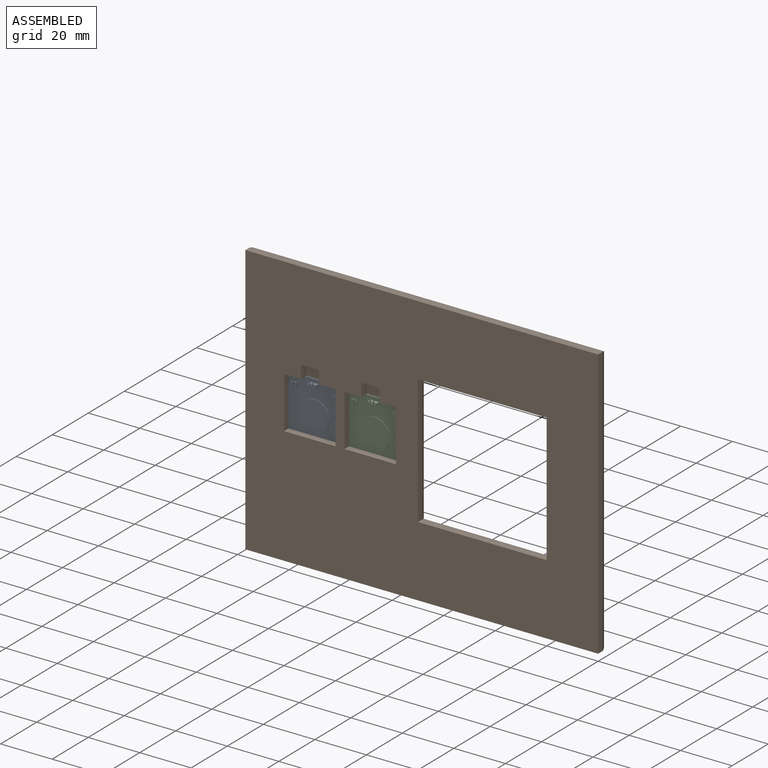
[diagram: assembled view]
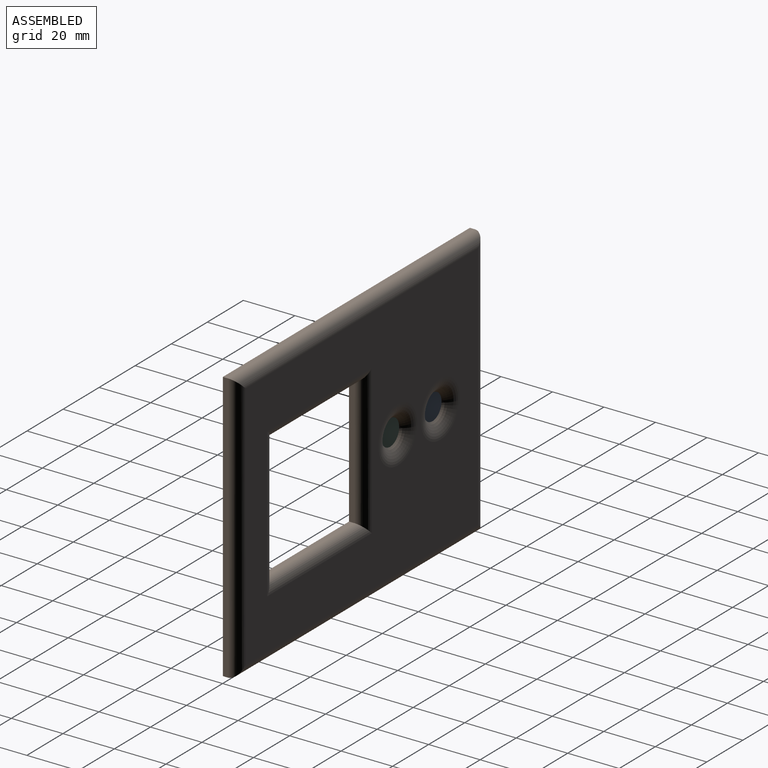
[diagram: assembled view, second angle]
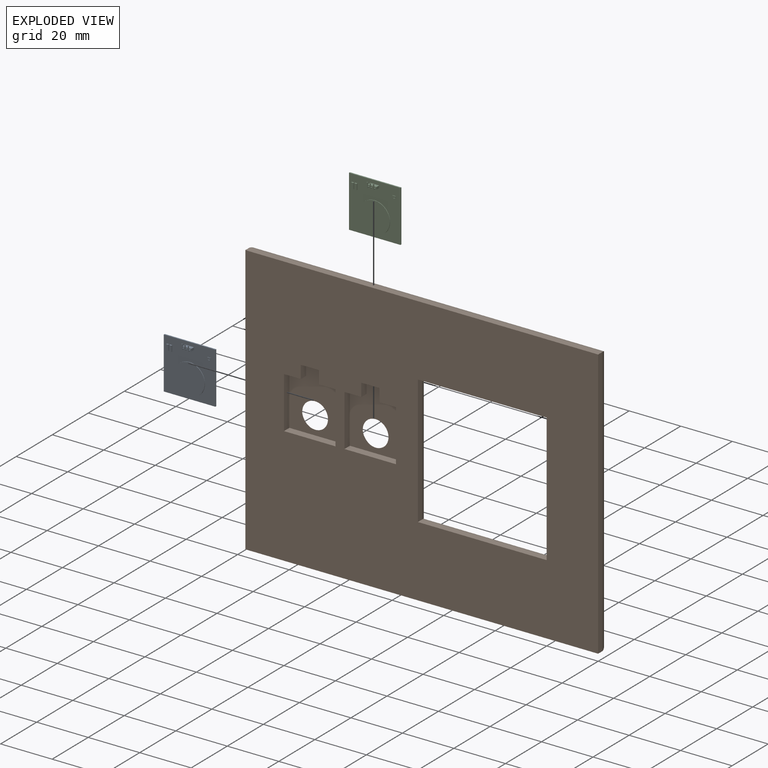
[diagram: exploded view]
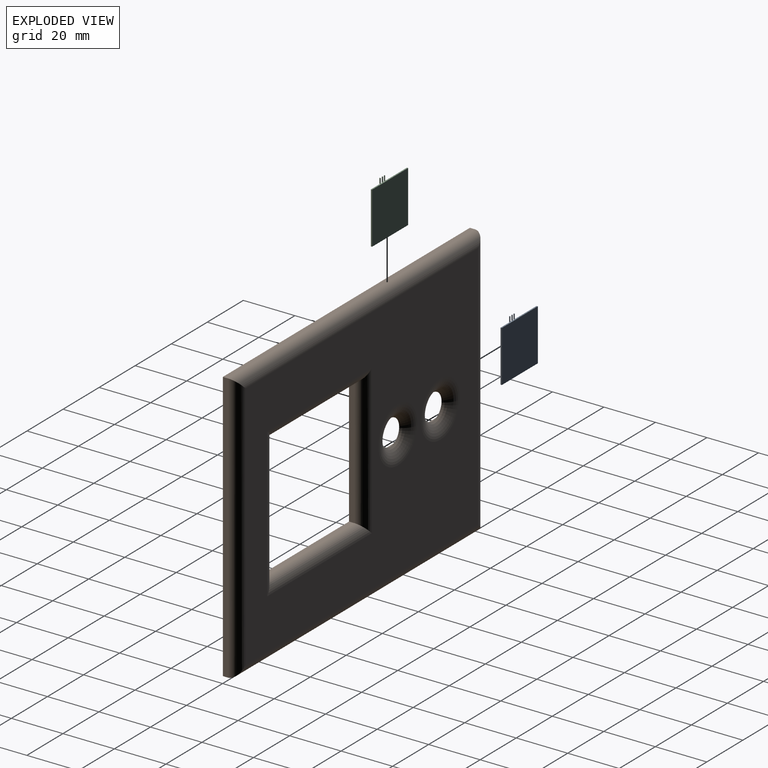
[diagram: exploded view, second angle]
ASSEMBLY  parts=3 mates=5
PART A: 54 faces, bbox 20x3.2x20 mm
  f0: plane 20x20mm, normal (0,-1,0), area 279mm2, adj f5,f6,f7,f8,f10,f11,f12,f13
  f1: plane 0.85x0.3mm, normal (0,0,1), area 0.3mm2, adj f4,f25,f26,f39
  f2: plane 0.85x0.3mm, normal (0,0,1), area 0.3mm2, adj f4,f28,f29,f36
  f3: plane 0.85x0.3mm, normal (0,0,1), area 0.3mm2, adj f4,f31,f32,f33
  f4: plane 3.41x0.93mm, normal (0,-1,0), area 2.9mm2, adj f1,f2,f3,f20,f21,f22,f23,f24
  f5: plane 20x0.5mm, normal (1,0,0), area 10mm2, adj f0,f6,f8,f9
  f6: plane 20x0.5mm, normal (0,0,1), area 10mm2, adj f0,f5,f7,f9
  f7: plane 20x0.5mm, normal (-1,0,0), area 10mm2, adj f0,f6,f8,f9
  f8: plane 20x0.5mm, normal (0,0,-1), area 10mm2, adj f0,f5,f7,f9
  f9: plane 20x20mm, normal (0,1,0), area 400mm2, adj f5,f6,f7,f8
  f10: plane 2.27x0.5mm, normal (1,0,0), area 1.1mm2, adj f0,f11,f13,f14
  f11: plane 0.85x0.5mm, normal (0,0,1), area 0.4mm2, adj f0,f10,f12,f14
  f12: plane 2.27x0.5mm, normal (-1,0,0), area 1.1mm2, adj f0,f11,f13,f14
  f13: plane 0.85x0.5mm, normal (0,0,-1), area 0.4mm2, adj f0,f10,f12,f14
  f14: plane 2.27x0.85mm, normal (0,-1,0), area 1.9mm2, adj f10,f11,f12,f13
  f15: plane 2.27x0.5mm, normal (1,0,0), area 1.1mm2, adj f0,f16,f18,f19
  f16: plane 0.85x0.5mm, normal (0,0,1), area 0.4mm2, adj f0,f15,f17,f19
  f17: plane 2.27x0.5mm, normal (-1,0,0), area 1.1mm2, adj f0,f16,f18,f19
  f18: plane 0.85x0.5mm, normal (0,0,-1), area 0.4mm2, adj f0,f15,f17,f19
  f19: plane 2.27x0.85mm, normal (0,-1,0), area 1.9mm2, adj f15,f16,f17,f18
  f20: plane 1.5x0.93mm, normal (1,0,0), area 1.4mm2, adj f0,f4,f21,f23
  f21: plane 3.41x1.5mm, normal (0,0,1), area 5.1mm2, adj f0,f4,f20,f22
  f22: plane 1.5x0.93mm, normal (-1,0,0), area 1.4mm2, adj f0,f4,f21,f23
  f23: plane 3.41x1.5mm, normal (0,0,-1), area 5.1mm2, adj f0,f4,f20,f22
  f24: plane 1.15x0.3mm, normal (0,0,-1), area 0.3mm2, adj f4,f25,f26,f40
  f25: plane 2x1.15mm, normal (1,0,0), area 0.9mm2, adj f1,f4,f24,f39,f40,f41
  f26: plane 2x1.15mm, normal (-1,0,0), area 0.9mm2, adj f1,f4,f24,f39,f40,f41
  f27: plane 1.15x0.3mm, normal (0,0,-1), area 0.3mm2, adj f4,f28,f29,f37
  f28: plane 2x1.15mm, normal (1,0,0), area 0.9mm2, adj f2,f4,f27,f36,f37,f38
  f29: plane 2x1.15mm, normal (-1,0,0), area 0.9mm2, adj f2,f4,f27,f36,f37,f38
  f30: plane 1.15x0.3mm, normal (0,0,-1), area 0.3mm2, adj f4,f31,f32,f34
  f31: plane 2x1.15mm, normal (1,0,0), area 0.9mm2, adj f3,f4,f30,f33,f34,f35
  f32: plane 2x1.15mm, normal (-1,0,0), area 0.9mm2, adj f3,f4,f30,f33,f34,f35
  f33: plane 1.7x0.3mm, normal (0,1,0), area 0.5mm2, adj f3,f31,f32,f35
  f34: plane 2x0.3mm, normal (0,-1,0), area 0.6mm2, adj f30,f31,f32,f35
  f35: plane 0.3x0.3mm, normal (0,0,1), area 0.1mm2, adj f31,f32,f33,f34
  f36: plane 1.7x0.3mm, normal (0,1,0), area 0.5mm2, adj f2,f28,f29,f38
  f37: plane 2x0.3mm, normal (0,-1,0), area 0.6mm2, adj f27,f28,f29,f38
  f38: plane 0.3x0.3mm, normal (0,0,1), area 0.1mm2, adj f28,f29,f36,f37
  f39: plane 1.7x0.3mm, normal (0,1,0), area 0.5mm2, adj f1,f25,f26,f41
  f40: plane 2x0.3mm, normal (0,-1,0), area 0.6mm2, adj f24,f25,f26,f41
  f41: plane 0.3x0.3mm, normal (0,0,1), area 0.1mm2, adj f25,f26,f39,f40
  f42: plane 0.57x0.2mm, normal (1,0,0), area 0.1mm2, adj f0,f43,f45,f46
  f43: plane 1.2x0.2mm, normal (0,0,1), area 0.2mm2, adj f0,f42,f44,f46
  f44: plane 0.57x0.2mm, normal (-1,0,0), area 0.1mm2, adj f0,f43,f45,f46
  f45: plane 1.2x0.2mm, normal (0,0,-1), area 0.2mm2, adj f0,f42,f44,f46
  f46: plane 1.2x0.57mm, normal (0,-1,0), area 0.7mm2, adj f42,f43,f44,f45
  f47: plane 0.27x0.2mm, normal (1,0,0), area 0.1mm2, adj f0,f48,f50,f51
  f48: plane 0.66x0.2mm, normal (0,0,1), area 0.1mm2, adj f0,f47,f49,f51
  f49: plane 0.27x0.2mm, normal (-1,0,0), area 0.1mm2, adj f0,f48,f50,f51
  f50: plane 0.66x0.2mm, normal (0,0,-1), area 0.1mm2, adj f0,f47,f49,f51
  f51: plane 0.66x0.27mm, normal (0,-1,0), area 0.2mm2, adj f47,f48,f49,f50
  f52: cylinder r=6mm len=12mm, axis (0,1,0), area 7.5mm2, adj f0,f53
  f53: plane 12x12mm, normal (0,-1,0), area 113.1mm2, adj f52
PART B: 38 faces, bbox 137x7x105 mm
  f0: plane 137x105mm, normal (0,-1,0), area 11015mm2, adj f1,f2,f3,f4,f6,f7,f8,f9
  f1: plane 105x2mm, normal (1,0,0), area 210mm2, adj f0,f2,f4,f14
  f2: plane 137x2mm, normal (0,0,1), area 274mm2, adj f0,f1,f3,f16
  f3: plane 105x2mm, normal (-1,0,0), area 210mm2, adj f0,f2,f4,f17
  f4: plane 137x2mm, normal (0,0,-1), area 274mm2, adj f0,f1,f3,f15
  f5: plane 129x97mm, normal (0,1,0), area 8423.6mm2, adj f10,f11,f12,f13,f14,f15,f16,f17
  f6: plane 50x2mm, normal (-1,0,0), area 100mm2, adj f0,f7,f9,f13
  f7: plane 50x2mm, normal (0,0,-1), area 100mm2, adj f0,f6,f8,f12
  f8: plane 50x2mm, normal (1,0,0), area 100mm2, adj f0,f7,f9,f10
  f9: plane 50x2mm, normal (0,0,1), area 100mm2, adj f0,f6,f8,f11
  f10: cylinder r=4mm len=58mm, axis (0,0,-1), area 332.4mm2, adj f5,f8,f11,f12
  f11: cylinder r=4mm len=58mm, axis (1,0,0), area 332.4mm2, adj f5,f9,f10,f13
  f12: cylinder r=4mm len=58mm, axis (-1,0,0), area 332.4mm2, adj f5,f7,f10,f13
  f13: cylinder r=4mm len=58mm, axis (0,0,1), area 332.4mm2, adj f5,f6,f11,f12
  f14: cylinder r=4mm len=105mm, axis (0,0,1), area 641.5mm2, adj f1,f5,f15,f16
  f15: cylinder r=4mm len=137mm, axis (1,0,0), area 842.5mm2, adj f4,f5,f14,f17
  f16: cylinder r=4mm len=137mm, axis (-1,0,0), area 842.5mm2, adj f2,f5,f14,f17
  f17: cylinder r=4mm len=105mm, axis (0,0,-1), area 641.5mm2, adj f3,f5,f15,f16
  f18: plane 6.5x3mm, normal (0,0,-1), area 19.5mm2, adj f0,f19,f25,f26
  f19: plane 5x3mm, normal (-1,0,0), area 15mm2, adj f0,f18,f20,f26
  f20: plane 7x3mm, normal (0,0,-1), area 21mm2, adj f0,f19,f21,f26
  f21: plane 5x3mm, normal (1,0,0), area 15mm2, adj f0,f20,f22,f26
  f22: plane 6.5x3mm, normal (0,0,-1), area 19.5mm2, adj f0,f21,f23,f26
  f23: plane 20x3mm, normal (1,0,0), area 60mm2, adj f0,f22,f24,f26
  f24: plane 20x3mm, normal (0,0,1), area 60mm2, adj f0,f23,f25,f26
  f25: plane 20x3mm, normal (-1,0,0), area 60mm2, adj f0,f18,f24,f26
  f26: plane 25x20mm, normal (0,-1,0), area 356.5mm2, adj f18,f19,f20,f21,f22,f23,f24,f25
  f27: plane 6.5x3mm, normal (0,0,-1), area 19.5mm2, adj f0,f28,f34,f35
  f28: plane 5x3mm, normal (-1,0,0), area 15mm2, adj f0,f27,f29,f35
  f29: plane 7x3mm, normal (0,0,-1), area 21mm2, adj f0,f28,f30,f35
  f30: plane 5x3mm, normal (1,0,0), area 15mm2, adj f0,f29,f31,f35
  f31: plane 6.5x3mm, normal (0,0,-1), area 19.5mm2, adj f0,f30,f32,f35
  f32: plane 20x3mm, normal (1,0,0), area 60mm2, adj f0,f31,f33,f35
  f33: plane 20x3mm, normal (0,0,1), area 60mm2, adj f0,f32,f34,f35
  f34: plane 20x3mm, normal (-1,0,0), area 60mm2, adj f0,f27,f33,f35
  f35: plane 25x20mm, normal (0,-1,0), area 356.5mm2, adj f27,f28,f29,f30,f31,f32,f33,f34
  f36: torus R=10.74mm, axis (0,-1,0), area 322.9mm2, adj f5,f26
  f37: torus R=10.74mm, axis (0,-1,0), area 322.9mm2, adj f5,f35
PART C: same geometry as A
PLACE A t=(47.95,43.06,-12.27)mm
PLACE B t=(91.45,46.06,-15.27)mm
PLACE C t=(71.45,43.06,-12.27)mm
MATE planar A.f5 <-> B.f34  axis (1,0,0) through (57.95,43.06,-12.27)mm
MATE planar C.f8 <-> B.f24  axis (0,0,-1) through (71.45,42.81,-22.27)mm
MATE planar C.f9 <-> B.f26  axis (0,1,0) through (81.45,43.06,-12.27)mm
MATE planar C.f8 <-> B.f24  axis (0,0,-1) through (71.45,42.81,-22.27)mm
MATE planar A.f8 <-> B.f33  axis (0,0,-1) through (47.95,42.81,-22.27)mm
